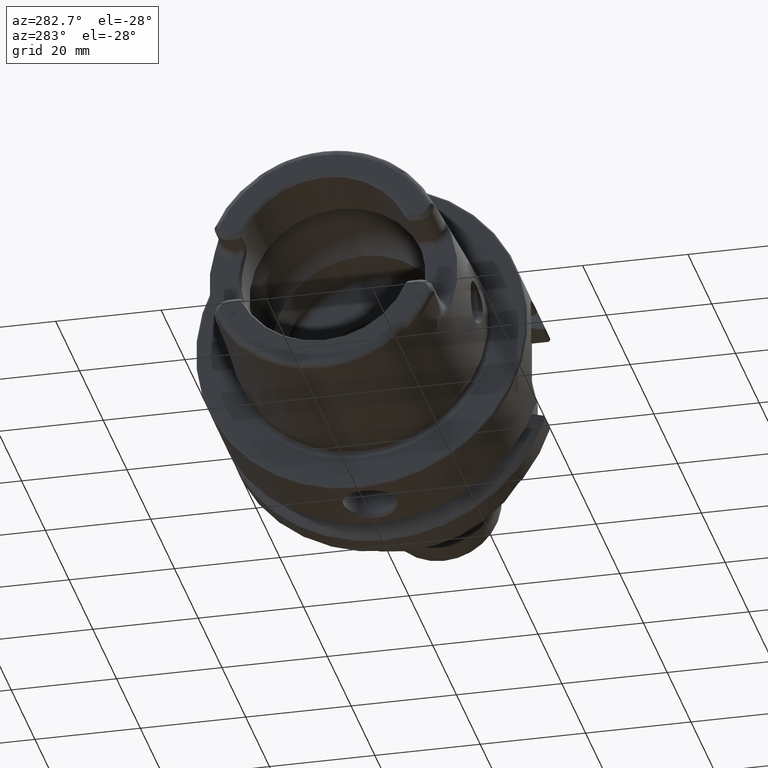
[diagram: clean part render]
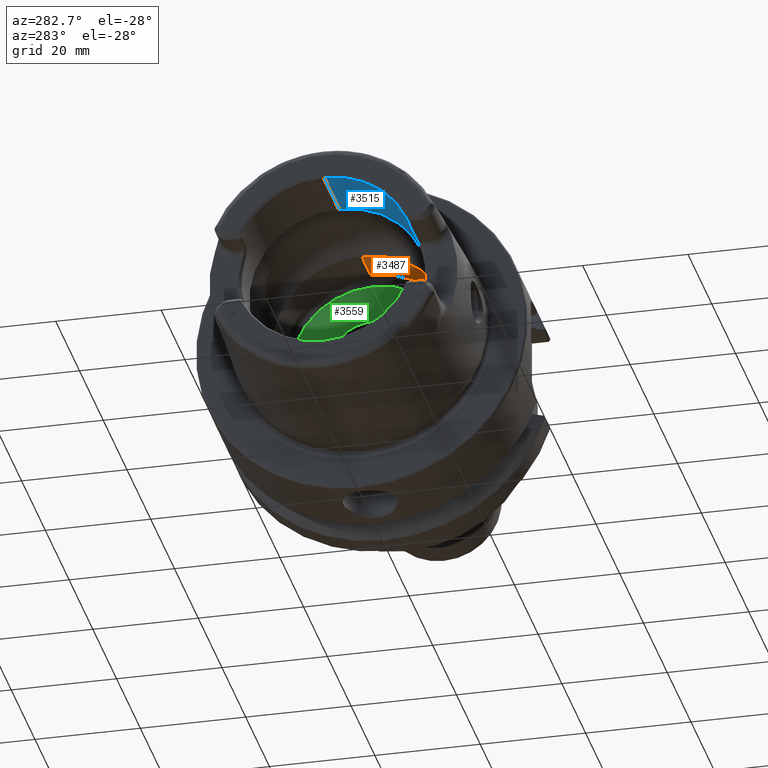
[diagram: same view with three faces highlighted in distinct colors, each labeled with its STEP entity id]
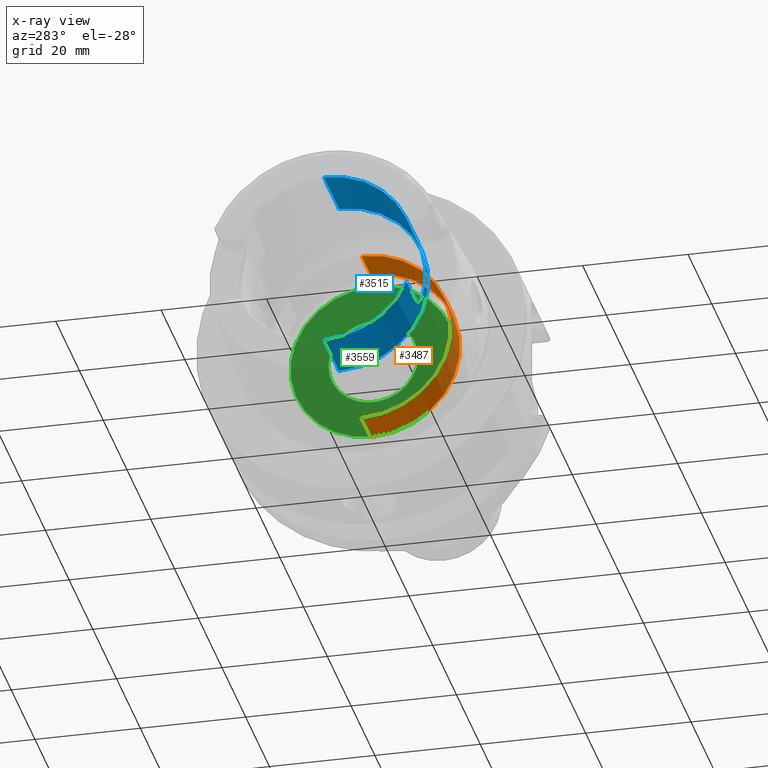
[diagram: x-ray of the same camera — body ghosted, the three highlighted faces saturated]
A machine part, auxiliary view with three faces highlighted in distinct colors.
The next image is the same camera in x-ray (body ghosted, the three faces saturated) — at least one of them is partly hidden behind the body in this view.
Their STEP definitions:

[orange] entity #3487 — the highlighted cylindrical surface (partial cylindrical patch) has radius 17 mm, axis along (1, 0, 0).
#254=DIRECTION('',(-1.E0,0.E0,0.E0));
#255=VECTOR('',#254,7.579836946705E0);
#256=CARTESIAN_POINT('',(7.670843802411E0,0.E0,-1.7E1));
#257=LINE('',#256,#255);
#258=CARTESIAN_POINT('',(7.670843802411E0,0.E0,0.E0));
#259=DIRECTION('',(1.E0,0.E0,0.E0));
#260=DIRECTION('',(0.E0,0.E0,1.E0));
#261=AXIS2_PLACEMENT_3D('',#258,#259,#260);
#263=DIRECTION('',(-1.E0,0.E0,0.E0));
#264=VECTOR('',#263,7.579836946705E0);
#265=CARTESIAN_POINT('',(7.670843802411E0,0.E0,1.7E1));
#266=LINE('',#265,#264);
#267=CARTESIAN_POINT('',(9.100685570619E-2,0.E0,0.E0));
#268=DIRECTION('',(1.E0,0.E0,0.E0));
#269=DIRECTION('',(0.E0,0.E0,1.E0));
#270=AXIS2_PLACEMENT_3D('',#267,#268,#269);
#2747=CARTESIAN_POINT('',(9.100685570619E-2,0.E0,-1.7E1));
#2748=CARTESIAN_POINT('',(9.100685570619E-2,0.E0,1.7E1));
#2749=VERTEX_POINT('',#2747);
#2750=VERTEX_POINT('',#2748);
#2755=CARTESIAN_POINT('',(7.670843802411E0,0.E0,-1.7E1));
#2756=VERTEX_POINT('',#2755);
#2757=CARTESIAN_POINT('',(7.670843802411E0,0.E0,1.7E1));
#2758=VERTEX_POINT('',#2757);
#3474=CARTESIAN_POINT('',(0.E0,0.E0,0.E0));
#3475=DIRECTION('',(1.E0,0.E0,0.E0));
#3476=DIRECTION('',(0.E0,0.E0,1.E0));
#3477=AXIS2_PLACEMENT_3D('',#3474,#3475,#3476);
#3478=CYLINDRICAL_SURFACE('',#3477,1.7E1);
#3479=ORIENTED_EDGE('',*,*,#3434,.F.);
#3481=ORIENTED_EDGE('',*,*,#3480,.F.);
#3482=ORIENTED_EDGE('',*,*,#3438,.T.);
#3484=ORIENTED_EDGE('',*,*,#3483,.T.);
#3485=EDGE_LOOP('',(#3479,#3481,#3482,#3484));
#3486=FACE_OUTER_BOUND('',#3485,.F.);
#3487=ADVANCED_FACE('',(#3486),#3478,.F.);
#262=CIRCLE('',#261,1.7E1);
#271=CIRCLE('',#270,1.7E1);
#3434=EDGE_CURVE('',#2756,#2749,#257,.T.);
#3438=EDGE_CURVE('',#2758,#2750,#266,.T.);
#3480=EDGE_CURVE('',#2758,#2756,#262,.T.);
#3483=EDGE_CURVE('',#2750,#2749,#271,.T.);

[blue] entity #3515 — the highlighted cylindrical surface (partial cylindrical patch) has radius 17 mm, axis along (1, 0, 0).
#272=CARTESIAN_POINT('',(-3.15E1,0.E0,0.E0));
#273=DIRECTION('',(1.E0,0.E0,0.E0));
#274=DIRECTION('',(0.E0,-9.221396591734E-1,-3.868571428571E-1));
#275=AXIS2_PLACEMENT_3D('',#272,#273,#274);
#277=DIRECTION('',(-1.E0,-6.903792289323E-9,3.402020068072E-11));
#278=VECTOR('',#277,1.250397459548E1);
#279=CARTESIAN_POINT('',(-1.899602540378E1,0.E0,-1.7E1));
#280=LINE('',#279,#278);
#281=CARTESIAN_POINT('',(-1.899602540378E1,0.E0,0.E0));
#282=DIRECTION('',(1.E0,0.E0,0.E0));
#283=DIRECTION('',(0.E0,0.E0,1.E0));
#284=AXIS2_PLACEMENT_3D('',#281,#282,#283);
#286=DIRECTION('',(-1.E0,2.385283683508E-9,-3.366909743156E-11));
#287=VECTOR('',#286,1.271529946137E1);
#288=CARTESIAN_POINT('',(-1.899602540378E1,0.E0,1.7E1));
#289=LINE('',#288,#287);
#290=CARTESIAN_POINT('',(-3.171132486541E1,0.E0,0.E0));
#291=DIRECTION('',(1.E0,0.E0,0.E0));
#292=DIRECTION('',(0.E0,0.E0,1.E0));
#293=AXIS2_PLACEMENT_3D('',#290,#291,#292);
#295=CARTESIAN_POINT('',(-3.171132486541E1,-1.558889454291E1,6.781324865405E0));
#296=CARTESIAN_POINT('',(-3.164317732329E1,-1.561853940455E1,6.713177323292E0));
#297=CARTESIAN_POINT('',(-3.157492591239E1,-1.564769805039E1,6.644925912391E0));
#298=CARTESIAN_POINT('',(-3.150657142857E1,-1.567637420595E1,6.576571428571E0));
#300=DIRECTION('',(-1.E0,7.806493534994E-11,1.337467313864E-10));
#301=VECTOR('',#300,8.006571291236E0);
#302=CARTESIAN_POINT('',(-2.350000013733E1,-1.567637420657E1,6.576571427501E0));
#303=LINE('',#302,#301);
#304=CARTESIAN_POINT('',(-2.149999999319E1,-1.635630409315E1,4.633715190920E0));
#305=CARTESIAN_POINT('',(-2.149837670162E1,-1.630683774285E1,4.808323859179E0));
#306=CARTESIAN_POINT('',(-2.154698674048E1,-1.620558232555E1,5.145031375457E0));
#307=CARTESIAN_POINT('',(-2.175634281348E1,-1.604191635076E1,5.633411327769E0));
#308=CARTESIAN_POINT('',(-2.209010361832E1,-1.589109359561E1,6.043372323205E0));
#309=CARTESIAN_POINT('',(-2.251604562885E1,-1.576970087508E1,6.351365719671E0));
#310=CARTESIAN_POINT('',(-2.300654217394E1,-1.569288971245E1,6.537435918996E0));
#311=CARTESIAN_POINT('',(-2.333316767882E1,-1.567591106793E1,6.577675397064E0));
#312=CARTESIAN_POINT('',(-2.350000013733E1,-1.567637420657E1,6.576571427501E0));
#314=CARTESIAN_POINT('',(-2.15E1,0.E0,0.E0));
#315=DIRECTION('',(-1.E0,0.E0,0.E0));
#316=DIRECTION('',(0.E0,-9.621355498715E-1,-2.725714285714E-1));
#317=AXIS2_PLACEMENT_3D('',#314,#315,#316);
#319=CARTESIAN_POINT('',(-2.349999986317E1,-1.567637420552E1,
-6.576571429211E0));
#320=CARTESIAN_POINT('',(-2.332970719140E1,-1.567611857761E1,
-6.577180761720E0));
#321=CARTESIAN_POINT('',(-2.299840942678E1,-1.569359910657E1,
-6.535750833257E0));
#322=CARTESIAN_POINT('',(-2.251183524324E1,-1.577082022066E1,
-6.348574599471E0));
#323=CARTESIAN_POINT('',(-2.208814623726E1,-1.589177064458E1,
-6.041605818138E0));
#324=CARTESIAN_POINT('',(-2.175385506539E1,-1.604330085675E1,
-5.629517468253E0));
#325=CARTESIAN_POINT('',(-2.154614938594E1,-1.620674011477E1,
-5.141319066030E0));
#326=CARTESIAN_POINT('',(-2.149842226301E1,-1.630728005799E1,
-4.806762546710E0));
#327=CARTESIAN_POINT('',(-2.150000000035E1,-1.635630437232E1,
-4.633714197965E0));
#329=DIRECTION('',(9.999999410129E-1,1.989017162463E-4,-2.800220290254E-4));
#330=VECTOR('',#329,8.002685056695E0);
#331=CARTESIAN_POINT('',(-3.150268444781E1,-1.567796595331E1,
-6.574330501103E0));
#332=LINE('',#331,#330);
#2743=CARTESIAN_POINT('',(-1.899602540378E1,0.E0,-1.7E1));
#2744=CARTESIAN_POINT('',(-1.899602540378E1,0.E0,1.7E1));
#2745=VERTEX_POINT('',#2743);
#2746=VERTEX_POINT('',#2744);
#2922=VERTEX_POINT('',#304);
#2923=VERTEX_POINT('',#312);
#2926=CARTESIAN_POINT('',(-2.15E1,-1.635630434782E1,-4.633714285714E0));
#2927=VERTEX_POINT('',#2926);
#2930=VERTEX_POINT('',#319);
#2958=CARTESIAN_POINT('',(-3.149999999926E1,-8.632484131625E-8,
-1.699999999957E1));
#2959=VERTEX_POINT('',#2958);
#2960=CARTESIAN_POINT('',(-3.171132486516E1,3.032959373375E-8,
1.699999999957E1));
#2961=VERTEX_POINT('',#2960);
#2980=VERTEX_POINT('',#295);
#2981=VERTEX_POINT('',#298);
#3000=CARTESIAN_POINT('',(-3.150268444781E1,-1.567796595331E1,
-6.574330501103E0));
#3001=VERTEX_POINT('',#3000);
#3488=CARTESIAN_POINT('',(0.E0,0.E0,0.E0));
#3489=DIRECTION('',(1.E0,0.E0,0.E0));
#3490=DIRECTION('',(0.E0,0.E0,1.E0));
#3491=AXIS2_PLACEMENT_3D('',#3488,#3489,#3490);
#3492=CYLINDRICAL_SURFACE('',#3491,1.7E1);
#3494=ORIENTED_EDGE('',*,*,#3493,.T.);
#3495=ORIENTED_EDGE('',*,*,#3469,.F.);
#3497=ORIENTED_EDGE('',*,*,#3496,.F.);
#3498=ORIENTED_EDGE('',*,*,#3465,.T.);
#3500=ORIENTED_EDGE('',*,*,#3499,.T.);
#3502=ORIENTED_EDGE('',*,*,#3501,.T.);
#3504=ORIENTED_EDGE('',*,*,#3503,.F.);
#3506=ORIENTED_EDGE('',*,*,#3505,.F.);
#3508=ORIENTED_EDGE('',*,*,#3507,.F.);
#3510=ORIENTED_EDGE('',*,*,#3509,.F.);
#3512=ORIENTED_EDGE('',*,*,#3511,.F.);
#3513=EDGE_LOOP('',(#3494,#3495,#3497,#3498,#3500,#3502,#3504,#3506,#3508,#3510,
#3512));
#3514=FACE_OUTER_BOUND('',#3513,.F.);
#3515=ADVANCED_FACE('',(#3514),#3492,.F.);
#276=CIRCLE('',#275,1.7E1);
#285=CIRCLE('',#284,1.7E1);
#294=CIRCLE('',#293,1.7E1);
#299=B_SPLINE_CURVE_WITH_KNOTS('',3,(#295,#296,#297,#298),.UNSPECIFIED.,.F.,.F.,
(4,4),(0.E0,1.E0),.UNSPECIFIED.);
#313=B_SPLINE_CURVE_WITH_KNOTS('',3,(#304,#305,#306,#307,#308,#309,#310,#311,
#312),.UNSPECIFIED.,.F.,.F.,(4,1,1,1,1,1,4),(0.E0,1.666666666667E-1,
3.333333333333E-1,5.E-1,6.666666666667E-1,8.333333333333E-1,1.E0),
.UNSPECIFIED.);
#318=CIRCLE('',#317,1.7E1);
#328=B_SPLINE_CURVE_WITH_KNOTS('',3,(#319,#320,#321,#322,#323,#324,#325,#326,
#327),.UNSPECIFIED.,.F.,.F.,(4,1,1,1,1,1,4),(0.E0,1.666666666667E-1,
3.333333333333E-1,5.E-1,6.666666666667E-1,8.333333333333E-1,1.E0),
.UNSPECIFIED.);
#3465=EDGE_CURVE('',#2746,#2961,#289,.T.);
#3469=EDGE_CURVE('',#2745,#2959,#280,.T.);
#3493=EDGE_CURVE('',#3001,#2959,#276,.T.);
#3496=EDGE_CURVE('',#2746,#2745,#285,.T.);
#3499=EDGE_CURVE('',#2961,#2980,#294,.T.);
#3501=EDGE_CURVE('',#2980,#2981,#299,.T.);
#3503=EDGE_CURVE('',#2923,#2981,#303,.T.);
#3505=EDGE_CURVE('',#2922,#2923,#313,.T.);
#3507=EDGE_CURVE('',#2927,#2922,#318,.T.);
#3509=EDGE_CURVE('',#2930,#2927,#328,.T.);
#3511=EDGE_CURVE('',#3001,#2930,#332,.T.);

[green] entity #3559 — the highlighted planar face has unit normal (1, 0, 0).
#338=CARTESIAN_POINT('',(1.E1,0.E0,0.E0));
#339=DIRECTION('',(-1.E0,0.E0,0.E0));
#340=DIRECTION('',(0.E0,0.E0,-1.E0));
#341=AXIS2_PLACEMENT_3D('',#338,#339,#340);
#348=CARTESIAN_POINT('',(1.E1,0.E0,0.E0));
#349=DIRECTION('',(1.E0,0.E0,0.E0));
#350=DIRECTION('',(0.E0,0.E0,-1.E0));
#351=AXIS2_PLACEMENT_3D('',#348,#349,#350);
#353=CARTESIAN_POINT('',(1.E1,0.E0,0.E0));
#354=DIRECTION('',(-1.E0,0.E0,0.E0));
#355=DIRECTION('',(0.E0,1.E0,0.E0));
#356=AXIS2_PLACEMENT_3D('',#353,#354,#355);
#358=CARTESIAN_POINT('',(1.E1,0.E0,0.E0));
#359=DIRECTION('',(-1.E0,0.E0,0.E0));
#360=DIRECTION('',(0.E0,-1.E0,0.E0));
#361=AXIS2_PLACEMENT_3D('',#358,#359,#360);
#2759=CARTESIAN_POINT('',(1.E1,0.E0,-1.575E1));
#2760=CARTESIAN_POINT('',(1.E1,0.E0,1.575E1));
#2761=VERTEX_POINT('',#2759);
#2762=VERTEX_POINT('',#2760);
#2763=CARTESIAN_POINT('',(1.E1,8.5E0,0.E0));
#2764=CARTESIAN_POINT('',(1.E1,-8.5E0,0.E0));
#2765=VERTEX_POINT('',#2763);
#2766=VERTEX_POINT('',#2764);
#3544=CARTESIAN_POINT('',(1.E1,0.E0,0.E0));
#3545=DIRECTION('',(1.E0,0.E0,0.E0));
#3546=DIRECTION('',(0.E0,0.E0,1.E0));
#3547=AXIS2_PLACEMENT_3D('',#3544,#3545,#3546);
#3548=PLANE('',#3547);
#3549=ORIENTED_EDGE('',*,*,#3524,.F.);
#3550=ORIENTED_EDGE('',*,*,#3538,.T.);
#3551=EDGE_LOOP('',(#3549,#3550));
#3552=FACE_OUTER_BOUND('',#3551,.F.);
#3554=ORIENTED_EDGE('',*,*,#3553,.T.);
#3556=ORIENTED_EDGE('',*,*,#3555,.T.);
#3557=EDGE_LOOP('',(#3554,#3556));
#3558=FACE_BOUND('',#3557,.F.);
#3559=ADVANCED_FACE('',(#3552,#3558),#3548,.F.);
#342=CIRCLE('',#341,1.575E1);
#352=CIRCLE('',#351,1.575E1);
#357=CIRCLE('',#356,8.5E0);
#362=CIRCLE('',#361,8.5E0);
#3524=EDGE_CURVE('',#2761,#2762,#342,.T.);
#3538=EDGE_CURVE('',#2761,#2762,#352,.T.);
#3553=EDGE_CURVE('',#2765,#2766,#357,.T.);
#3555=EDGE_CURVE('',#2766,#2765,#362,.T.);